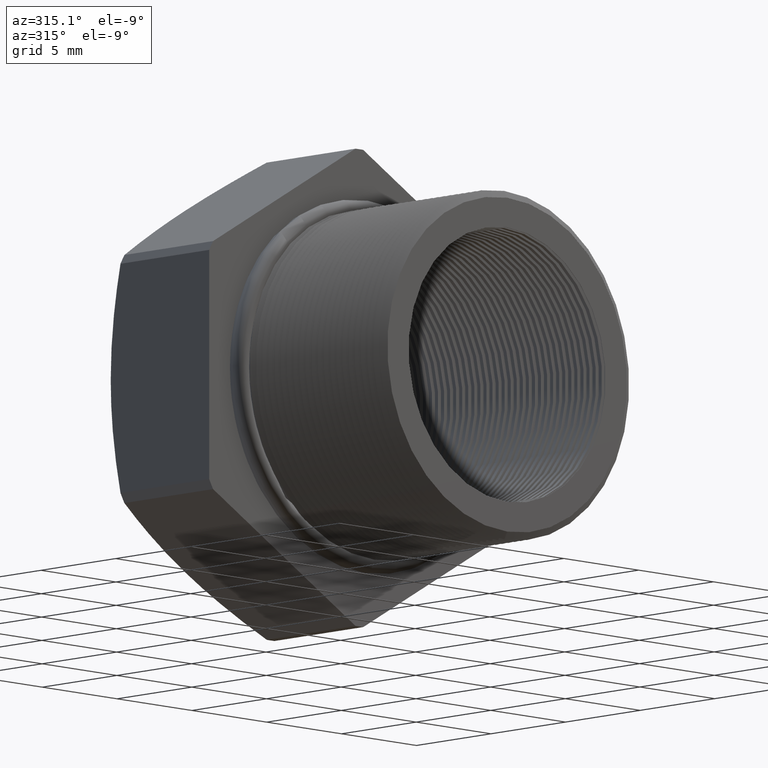
[diagram: clean part render]
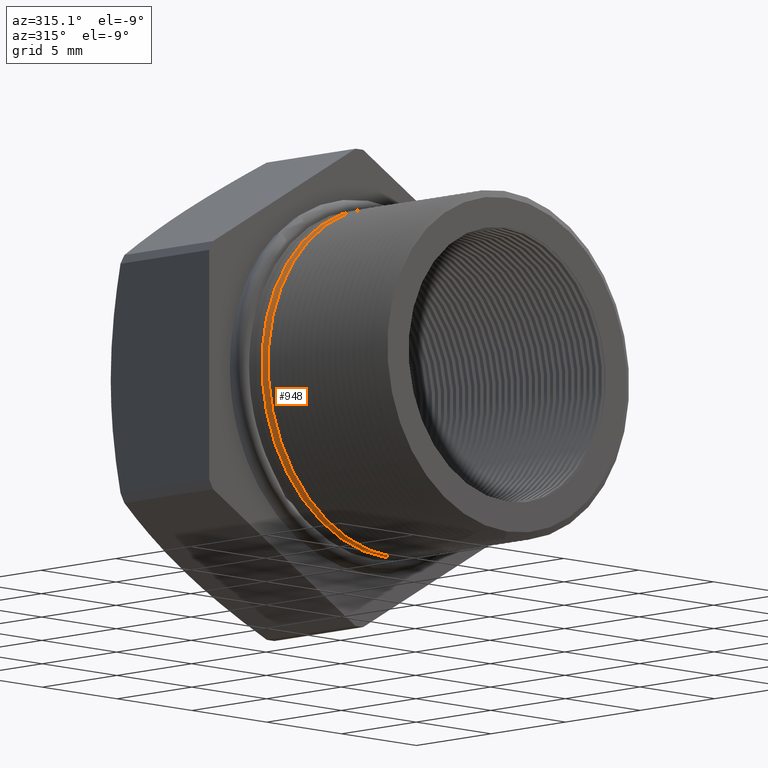
[diagram: same view with one face highlighted and labeled with its STEP entity id]
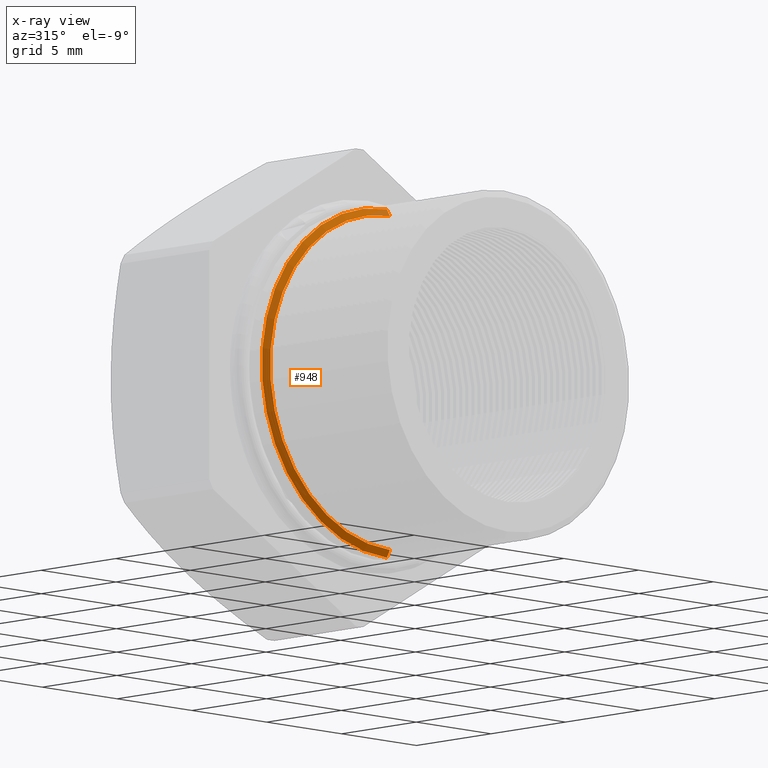
[diagram: x-ray of the same camera — body ghosted, the highlighted face saturated]
A machine part, auxiliary view. The second image highlights one B-rep face of the part: STEP entity #948.
The next image is the same camera in x-ray: the body ghosted, the highlighted face saturated — about 2% of this face is hidden behind the body in this view.
In plain terms, the highlighted conical surface has half-angle 60 deg.
Its self-contained STEP definition (entity closure, byte-faithful):
#838 = EDGE_CURVE ( 'NONE', #8456, #8453, #3478, .T. ) ;
#947 = EDGE_CURVE ( 'NONE', #8458, #8504, #3639, .T. ) ;
#948 = ADVANCED_FACE ( 'NONE', ( #3630 ), #3629, .T. ) ;
#949 = EDGE_LOOP ( 'NONE', ( #950, #951, #952, #953 ) ) ;
#950 = ORIENTED_EDGE ( 'NONE', *, *, #8460, .F. ) ;
#951 = ORIENTED_EDGE ( 'NONE', *, *, #838, .T. ) ;
#952 = ORIENTED_EDGE ( 'NONE', *, *, #8503, .T. ) ;
#953 = ORIENTED_EDGE ( 'NONE', *, *, #947, .F. ) ;
#3470 = DIRECTION ( 'NONE',  ( 0.0000000000000000000, 0.0000000000000000000, 1.000000000000000000 ) ) ;
#3471 = DIRECTION ( 'NONE',  ( -0.0000000000000000000, 1.000000000000000000, -0.0000000000000000000 ) ) ;
#3472 = CARTESIAN_POINT ( 'NONE',  ( 0.0000000000000000000, 0.06700253635588704300, 0.0000000000000000000 ) ) ;
#3473 = AXIS2_PLACEMENT_3D ( 'NONE', #3472, #3471, #3470 ) ;
#3478 = CIRCLE ( 'NONE', #3473, 0.3150000000000000000 ) ;
#3624 = DIRECTION ( 'NONE',  ( 0.0000000000000000000, 0.0000000000000000000, 1.000000000000000000 ) ) ;
#3625 = DIRECTION ( 'NONE',  ( -0.0000000000000000000, 1.000000000000000000, -0.0000000000000000000 ) ) ;
#3626 = CARTESIAN_POINT ( 'NONE',  ( 0.0000000000000000000, 0.07495489058294796400, 0.0000000000000000000 ) ) ;
#3627 = AXIS2_PLACEMENT_3D ( 'NONE', #3626, #3625, #3624 ) ;
#3629 = CONICAL_SURFACE ( 'NONE', #3627, 0.3287738815610546400, 1.047197551196597600 ) ;
#3630 = FACE_OUTER_BOUND ( 'NONE', #949, .T. ) ;
#3631 = DIRECTION ( 'NONE',  ( 0.0000000000000000000, 0.0000000000000000000, 1.000000000000000000 ) ) ;
#3632 = DIRECTION ( 'NONE',  ( -0.0000000000000000000, 1.000000000000000000, -0.0000000000000000000 ) ) ;
#3633 = CARTESIAN_POINT ( 'NONE',  ( 0.0000000000000000000, 0.07495489058294796400, 0.0000000000000000000 ) ) ;
#3634 = AXIS2_PLACEMENT_3D ( 'NONE', #3633, #3632, #3631 ) ;
#3639 = CIRCLE ( 'NONE', #3634, 0.3287738815610546400 ) ;
#5085 = DIRECTION ( 'NONE',  ( 1.060575238724906900E-016, 0.5000000000000001100, -0.8660254037844386000 ) ) ;
#5086 = VECTOR ( 'NONE', #5085, 39.37007874015748100 ) ;
#5087 = CARTESIAN_POINT ( 'NONE',  ( 4.026318816969965600E-017, 0.07495489058294796400, -0.3287738815610546400 ) ) ;
#5088 = LINE ( 'NONE', #5087, #5086 ) ;
#5089 = CARTESIAN_POINT ( 'NONE',  ( 0.0000000000000000000, 0.07495489058294796400, -0.3287738815610546400 ) ) ;
#5090 = CARTESIAN_POINT ( 'NONE',  ( 0.0000000000000000000, 0.06700253635588704300, -0.3150000000000000000 ) ) ;
#5092 = CARTESIAN_POINT ( 'NONE',  ( 3.857637417314162700E-017, 0.06700253635588704300, 0.3150000000000000000 ) ) ;
#5129 = CARTESIAN_POINT ( 'NONE',  ( 4.026318816969966200E-017, 0.07495489058294796400, 0.3287738815610546400 ) ) ;
#5131 = DIRECTION ( 'NONE',  ( 0.0000000000000000000, 0.5000000000000001100, 0.8660254037844386000 ) ) ;
#5132 = VECTOR ( 'NONE', #5131, 39.37007874015748100 ) ;
#5133 = CARTESIAN_POINT ( 'NONE',  ( 0.0000000000000000000, 0.07495489058294796400, 0.3287738815610546400 ) ) ;
#5134 = LINE ( 'NONE', #5133, #5132 ) ;
#8453 = VERTEX_POINT ( 'NONE', #5092 ) ;
#8456 = VERTEX_POINT ( 'NONE', #5090 ) ;
#8458 = VERTEX_POINT ( 'NONE', #5089 ) ;
#8460 = EDGE_CURVE ( 'NONE', #8456, #8458, #5088, .T. ) ;
#8503 = EDGE_CURVE ( 'NONE', #8453, #8504, #5134, .T. ) ;
#8504 = VERTEX_POINT ( 'NONE', #5129 ) ;